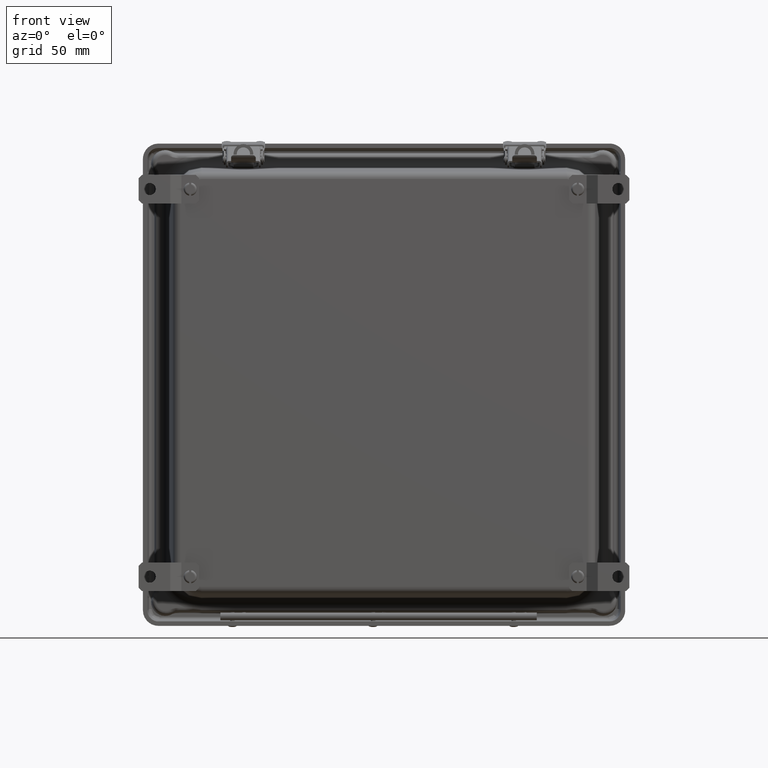
[diagram: clean part render]
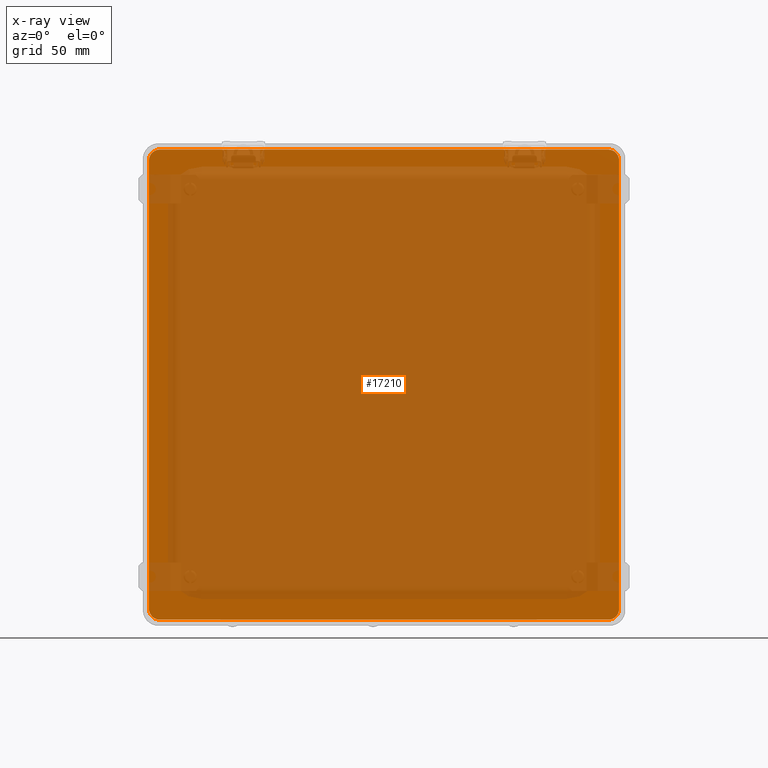
[diagram: x-ray — body ghosted, one internal face saturated and labeled with its STEP entity id]
A machine part, front view, then the same camera in x-ray: the body is ghosted and one INTERNAL B-rep face — a face not visible from any outside direction — is saturated and labeled: STEP entity #17210.
In plain terms, the highlighted planar face has unit normal (-0, -1, -0).
Its self-contained STEP definition (entity closure, byte-faithful):
#182 = CARTESIAN_POINT ( 'NONE',  ( -6.538581471814454800, 6.656950339941526600, -1.000000000000000000 ) ) ;
#723 = VERTEX_POINT ( 'NONE', #28901 ) ;
#1223 = CARTESIAN_POINT ( 'NONE',  ( -6.597765905877992900, 6.597765905877988500, -1.000000000000000000 ) ) ;
#1595 =( BOUNDED_CURVE ( )  B_SPLINE_CURVE ( 3, ( #90462, #100149, #43435, #18805 ),
 .UNSPECIFIED., .F., .F. ) 
 B_SPLINE_CURVE_WITH_KNOTS ( ( 4, 4 ),
 ( -2.664535259100375700E-015, 0.7840286355270540400 ),
 .UNSPECIFIED. ) 
 CURVE ( )  GEOMETRIC_REPRESENTATION_ITEM ( )  RATIONAL_B_SPLINE_CURVE ( ( 1.000000000000000000, 0.9494275757997195900, 0.9494275757997195900, 1.000000000000000000 ) ) 
 REPRESENTATION_ITEM ( '' )  );
#2581 = CARTESIAN_POINT ( 'NONE',  ( -6.688971649877603700, 6.461213214539990100, -1.000000000000000000 ) ) ;
#4305 = CARTESIAN_POINT ( 'NONE',  ( -6.538581471814451300, -6.656950339941529300, -1.000000000000000000 ) ) ;
#5953 = CARTESIAN_POINT ( 'NONE',  ( 6.538581471814448600, 6.656950339941530200, -1.000000000000000000 ) ) ;
#8665 = ORIENTED_EDGE ( 'NONE', *, *, #60981, .T. ) ;
#9768 = CARTESIAN_POINT ( 'NONE',  ( -6.688971649877601100, 6.377399235034170400, -1.000000000000000000 ) ) ;
#10116 = EDGE_CURVE ( 'NONE', #92647, #70966, #93524, .T. ) ;
#10492 = EDGE_CURVE ( 'NONE', #83997, #70188, #69837, .T. ) ;
#12290 = CARTESIAN_POINT ( 'NONE',  ( 6.688971649877596600, -6.371191114029207900, -1.000000000000000000 ) ) ;
#13138 = ORIENTED_EDGE ( 'NONE', *, *, #40038, .T. ) ;
#14168 = EDGE_CURVE ( 'NONE', #104437, #103259, #1595, .T. ) ;
#14183 = CARTESIAN_POINT ( 'NONE',  ( 6.597765905877986700, 6.597765905877992900, -1.000000000000000000 ) ) ;
#15800 = CARTESIAN_POINT ( 'NONE',  ( 6.377399235034170400, -6.688971649877599300, -1.000000000000000000 ) ) ;
#17210 = ADVANCED_FACE ( 'NONE', ( #32924 ), #58516, .F. ) ;
#17663 = CARTESIAN_POINT ( 'NONE',  ( -6.377399235034175700, 6.688971649877597500, -1.000000000000000000 ) ) ;
#17931 = CARTESIAN_POINT ( 'NONE',  ( 6.597765905877987600, -6.597765905877988500, -1.000000000000000000 ) ) ;
#18061 = DIRECTION ( 'NONE',  ( 1.000000000000000000, 0.0000000000000000000, -0.0000000000000000000 ) ) ;
#18805 = CARTESIAN_POINT ( 'NONE',  ( -6.688971649877602000, -6.377399235034173900, -1.000000000000000000 ) ) ;
#19040 = CARTESIAN_POINT ( 'NONE',  ( -6.656950339941531100, 6.538581471814451300, -1.000000000000000000 ) ) ;
#20154 =( BOUNDED_CURVE ( )  B_SPLINE_CURVE ( 3, ( #102076, #101365, #4305, #28265 ),
 .UNSPECIFIED., .F., .F. ) 
 B_SPLINE_CURVE_WITH_KNOTS ( ( 4, 4 ),
 ( 5.499156671652528400, 6.283185307179586200 ),
 .UNSPECIFIED. ) 
 CURVE ( )  GEOMETRIC_REPRESENTATION_ITEM ( )  RATIONAL_B_SPLINE_CURVE ( ( 1.000000000000000000, 0.9494275757997194800, 0.9494275757997194800, 1.000000000000000000 ) ) 
 REPRESENTATION_ITEM ( '' )  );
#20355 = VECTOR ( 'NONE', #42115, 39.37007874015748100 ) ;
#21478 = ORIENTED_EDGE ( 'NONE', *, *, #10116, .T. ) ;
#21965 = CARTESIAN_POINT ( 'NONE',  ( 6.688971649877599300, -6.461213214539991000, -1.000000000000000000 ) ) ;
#22799 = EDGE_CURVE ( 'NONE', #52317, #24667, #49412, .T. ) ;
#24068 = CARTESIAN_POINT ( 'NONE',  ( -6.371191114029207000, -6.688971649877601100, -1.000000000000000000 ) ) ;
#24667 = VERTEX_POINT ( 'NONE', #89741 ) ;
#27021 = CARTESIAN_POINT ( 'NONE',  ( 0.0000000000000000000, 0.0000000000000000000, -1.000000000000000000 ) ) ;
#27072 = LINE ( 'NONE', #12290, #46240 ) ;
#28039 = CARTESIAN_POINT ( 'NONE',  ( -6.377399235034173900, -6.688971649877601100, -1.000000000000000000 ) ) ;
#28265 = CARTESIAN_POINT ( 'NONE',  ( -6.597765905877991200, -6.597765905877991200, -1.000000000000000000 ) ) ;
#28901 = CARTESIAN_POINT ( 'NONE',  ( -6.688971649877601100, 6.377399235034170400, -1.000000000000000000 ) ) ;
#29071 = DIRECTION ( 'NONE',  ( -0.0000000000000000000, -1.000000000000000000, -0.0000000000000000000 ) ) ;
#29250 = CARTESIAN_POINT ( 'NONE',  ( 6.688971649877596600, 6.377399235034174800, -1.000000000000000000 ) ) ;
#31244 = CARTESIAN_POINT ( 'NONE',  ( 6.597765905877987600, -6.597765905877988500, -1.000000000000000000 ) ) ;
#32051 = CARTESIAN_POINT ( 'NONE',  ( -6.688971649877601100, 6.371191114029203500, -1.000000000000000000 ) ) ;
#32924 = FACE_OUTER_BOUND ( 'NONE', #64196, .T. ) ;
#33290 = CARTESIAN_POINT ( 'NONE',  ( -6.688971649877602000, -6.377399235034173900, -1.000000000000000000 ) ) ;
#33646 = VERTEX_POINT ( 'NONE', #29250 ) ;
#35467 = CARTESIAN_POINT ( 'NONE',  ( -6.597765905877992900, 6.597765905877988500, -1.000000000000000000 ) ) ;
#39281 =( BOUNDED_CURVE ( )  B_SPLINE_CURVE ( 3, ( #80271, #21965, #95770, #31244 ),
 .UNSPECIFIED., .F., .T. ) 
 B_SPLINE_CURVE_WITH_KNOTS ( ( 4, 4 ),
 ( 5.499156671652532000, 6.283185307179586200 ),
 .UNSPECIFIED. ) 
 CURVE ( )  GEOMETRIC_REPRESENTATION_ITEM ( )  RATIONAL_B_SPLINE_CURVE ( ( 1.000000000000000000, 0.9494275757997199200, 0.9494275757997199200, 1.000000000000000000 ) ) 
 REPRESENTATION_ITEM ( '' )  );
#39750 = DIRECTION ( 'NONE',  ( -1.000000000000000000, -1.592914282019978400E-016, -0.0000000000000000000 ) ) ;
#40038 = EDGE_CURVE ( 'NONE', #723, #92647, #42120, .T. ) ;
#40541 = ORIENTED_EDGE ( 'NONE', *, *, #73140, .T. ) ;
#41917 = ORIENTED_EDGE ( 'NONE', *, *, #57628, .T. ) ;
#42115 = DIRECTION ( 'NONE',  ( 1.000000000000000000, 1.592914282019978400E-016, -0.0000000000000000000 ) ) ;
#42120 =( BOUNDED_CURVE ( )  B_SPLINE_CURVE ( 3, ( #9768, #2581, #19040, #35467 ),
 .UNSPECIFIED., .F., .F. ) 
 B_SPLINE_CURVE_WITH_KNOTS ( ( 4, 4 ),
 ( 5.499156671652528400, 6.283185307179586200 ),
 .UNSPECIFIED. ) 
 CURVE ( )  GEOMETRIC_REPRESENTATION_ITEM ( )  RATIONAL_B_SPLINE_CURVE ( ( 1.000000000000000000, 0.9494275757997194800, 0.9494275757997194800, 1.000000000000000000 ) ) 
 REPRESENTATION_ITEM ( '' )  );
#43234 = LINE ( 'NONE', #32051, #106160 ) ;
#43435 = CARTESIAN_POINT ( 'NONE',  ( -6.688971649877603700, -6.461213214539991900, -0.9999999999999998900 ) ) ;
#46240 = VECTOR ( 'NONE', #29071, 39.37007874015748100 ) ;
#47057 = AXIS2_PLACEMENT_3D ( 'NONE', #27021, #74650, #18061 ) ;
#48843 = CARTESIAN_POINT ( 'NONE',  ( -6.597765905877991200, -6.597765905877991200, -1.000000000000000000 ) ) ;
#49412 =( BOUNDED_CURVE ( )  B_SPLINE_CURVE ( 3, ( #54578, #54938, #5953, #14183 ),
 .UNSPECIFIED., .F., .F. ) 
 B_SPLINE_CURVE_WITH_KNOTS ( ( 4, 4 ),
 ( 5.499156671652528400, 6.283185307179586200 ),
 .UNSPECIFIED. ) 
 CURVE ( )  GEOMETRIC_REPRESENTATION_ITEM ( )  RATIONAL_B_SPLINE_CURVE ( ( 1.000000000000000000, 0.9494275757997194800, 0.9494275757997194800, 1.000000000000000000 ) ) 
 REPRESENTATION_ITEM ( '' )  );
#49991 = CARTESIAN_POINT ( 'NONE',  ( 6.371191114029205200, 6.688971649877601100, -1.000000000000000000 ) ) ;
#52317 = VERTEX_POINT ( 'NONE', #96811 ) ;
#54254 = CARTESIAN_POINT ( 'NONE',  ( -6.597765905877992900, 6.597765905877988500, -1.000000000000000000 ) ) ;
#54299 = VECTOR ( 'NONE', #39750, 39.37007874015748100 ) ;
#54578 = CARTESIAN_POINT ( 'NONE',  ( 6.377399235034169500, 6.688971649877601100, -1.000000000000000000 ) ) ;
#54938 = CARTESIAN_POINT ( 'NONE',  ( 6.461213214539988300, 6.688971649877602000, -1.000000000000000000 ) ) ;
#55496 = ORIENTED_EDGE ( 'NONE', *, *, #10492, .T. ) ;
#56340 = DIRECTION ( 'NONE',  ( -0.0000000000000000000, 1.000000000000000000, -0.0000000000000000000 ) ) ;
#56981 = CARTESIAN_POINT ( 'NONE',  ( 6.688971649877597500, 6.461213214539992800, -0.9999999999999998900 ) ) ;
#57628 = EDGE_CURVE ( 'NONE', #95643, #104437, #20154, .T. ) ;
#58516 = PLANE ( 'NONE',  #47057 ) ;
#60981 = EDGE_CURVE ( 'NONE', #103259, #723, #43234, .T. ) ;
#64196 = EDGE_LOOP ( 'NONE', ( #81062, #65041, #55496, #105664, #41917, #78650, #8665, #13138, #21478, #66724, #99076, #40541 ) ) ;
#65041 = ORIENTED_EDGE ( 'NONE', *, *, #104816, .T. ) ;
#66598 = CARTESIAN_POINT ( 'NONE',  ( 6.461213214539990100, -6.688971649877600200, -1.000000000000000000 ) ) ;
#66724 = ORIENTED_EDGE ( 'NONE', *, *, #92298, .T. ) ;
#67152 = CARTESIAN_POINT ( 'NONE',  ( 6.377399235034170400, -6.688971649877599300, -1.000000000000000000 ) ) ;
#69837 =( BOUNDED_CURVE ( )  B_SPLINE_CURVE ( 3, ( #17931, #105370, #66598, #15800 ),
 .UNSPECIFIED., .F., .F. ) 
 B_SPLINE_CURVE_WITH_KNOTS ( ( 4, 4 ),
 ( 0.0000000000000000000, 0.7840286355270540400 ),
 .UNSPECIFIED. ) 
 CURVE ( )  GEOMETRIC_REPRESENTATION_ITEM ( )  RATIONAL_B_SPLINE_CURVE ( ( 1.000000000000000000, 0.9494275757997199200, 0.9494275757997199200, 1.000000000000000000 ) ) 
 REPRESENTATION_ITEM ( '' )  );
#70188 = VERTEX_POINT ( 'NONE', #67152 ) ;
#70966 = VERTEX_POINT ( 'NONE', #88157 ) ;
#73140 = EDGE_CURVE ( 'NONE', #24667, #33646, #91385, .T. ) ;
#73889 = CARTESIAN_POINT ( 'NONE',  ( -6.461213214539995400, 6.688971649877600200, -1.000000000000000000 ) ) ;
#74650 = DIRECTION ( 'NONE',  ( 0.0000000000000000000, -0.0000000000000000000, 1.000000000000000000 ) ) ;
#74790 = LINE ( 'NONE', #24068, #54299 ) ;
#78650 = ORIENTED_EDGE ( 'NONE', *, *, #14168, .T. ) ;
#80271 = CARTESIAN_POINT ( 'NONE',  ( 6.688971649877596600, -6.377399235034171300, -1.000000000000000000 ) ) ;
#81062 = ORIENTED_EDGE ( 'NONE', *, *, #86710, .T. ) ;
#83997 = VERTEX_POINT ( 'NONE', #104058 ) ;
#86710 = EDGE_CURVE ( 'NONE', #33646, #104325, #27072, .T. ) ;
#87102 = CARTESIAN_POINT ( 'NONE',  ( 6.597765905877986700, 6.597765905877992900, -1.000000000000000000 ) ) ;
#88157 = CARTESIAN_POINT ( 'NONE',  ( -6.377399235034175700, 6.688971649877597500, -1.000000000000000000 ) ) ;
#89741 = CARTESIAN_POINT ( 'NONE',  ( 6.597765905877986700, 6.597765905877992900, -1.000000000000000000 ) ) ;
#90462 = CARTESIAN_POINT ( 'NONE',  ( -6.597765905877991200, -6.597765905877991200, -1.000000000000000000 ) ) ;
#91385 =( BOUNDED_CURVE ( )  B_SPLINE_CURVE ( 3, ( #87102, #106150, #56981, #97537 ),
 .UNSPECIFIED., .F., .F. ) 
 B_SPLINE_CURVE_WITH_KNOTS ( ( 4, 4 ),
 ( -2.664535259100375700E-015, 0.7840286355270540400 ),
 .UNSPECIFIED. ) 
 CURVE ( )  GEOMETRIC_REPRESENTATION_ITEM ( )  RATIONAL_B_SPLINE_CURVE ( ( 1.000000000000000000, 0.9494275757997195900, 0.9494275757997195900, 1.000000000000000000 ) ) 
 REPRESENTATION_ITEM ( '' )  );
#92298 = EDGE_CURVE ( 'NONE', #70966, #52317, #103622, .T. ) ;
#92647 = VERTEX_POINT ( 'NONE', #54254 ) ;
#93524 =( BOUNDED_CURVE ( )  B_SPLINE_CURVE ( 3, ( #1223, #182, #73889, #17663 ),
 .UNSPECIFIED., .F., .T. ) 
 B_SPLINE_CURVE_WITH_KNOTS ( ( 4, 4 ),
 ( 0.0000000000000000000, 0.7840286355270540400 ),
 .UNSPECIFIED. ) 
 CURVE ( )  GEOMETRIC_REPRESENTATION_ITEM ( )  RATIONAL_B_SPLINE_CURVE ( ( 1.000000000000000000, 0.9494275757997199200, 0.9494275757997199200, 1.000000000000000000 ) ) 
 REPRESENTATION_ITEM ( '' )  );
#93970 = CARTESIAN_POINT ( 'NONE',  ( 6.688971649877596600, -6.377399235034171300, -1.000000000000000000 ) ) ;
#95643 = VERTEX_POINT ( 'NONE', #28039 ) ;
#95770 = CARTESIAN_POINT ( 'NONE',  ( 6.656950339941526600, -6.538581471814450400, -1.000000000000000000 ) ) ;
#96811 = CARTESIAN_POINT ( 'NONE',  ( 6.377399235034169500, 6.688971649877601100, -1.000000000000000000 ) ) ;
#96965 = EDGE_CURVE ( 'NONE', #70188, #95643, #74790, .T. ) ;
#97537 = CARTESIAN_POINT ( 'NONE',  ( 6.688971649877596600, 6.377399235034174800, -1.000000000000000000 ) ) ;
#99076 = ORIENTED_EDGE ( 'NONE', *, *, #22799, .T. ) ;
#100149 = CARTESIAN_POINT ( 'NONE',  ( -6.656950339941529300, -6.538581471814451300, -0.9999999999999998900 ) ) ;
#101365 = CARTESIAN_POINT ( 'NONE',  ( -6.461213214539992800, -6.688971649877601100, -1.000000000000000000 ) ) ;
#102076 = CARTESIAN_POINT ( 'NONE',  ( -6.377399235034173900, -6.688971649877601100, -1.000000000000000000 ) ) ;
#103259 = VERTEX_POINT ( 'NONE', #33290 ) ;
#103622 = LINE ( 'NONE', #49991, #20355 ) ;
#104058 = CARTESIAN_POINT ( 'NONE',  ( 6.597765905877987600, -6.597765905877988500, -1.000000000000000000 ) ) ;
#104325 = VERTEX_POINT ( 'NONE', #93970 ) ;
#104437 = VERTEX_POINT ( 'NONE', #48843 ) ;
#104816 = EDGE_CURVE ( 'NONE', #104325, #83997, #39281, .T. ) ;
#105370 = CARTESIAN_POINT ( 'NONE',  ( 6.538581471814449500, -6.656950339941526600, -1.000000000000000000 ) ) ;
#105664 = ORIENTED_EDGE ( 'NONE', *, *, #96965, .T. ) ;
#106150 = CARTESIAN_POINT ( 'NONE',  ( 6.656950339941524900, 6.538581471814452200, -0.9999999999999998900 ) ) ;
#106160 = VECTOR ( 'NONE', #56340, 39.37007874015748100 ) ;